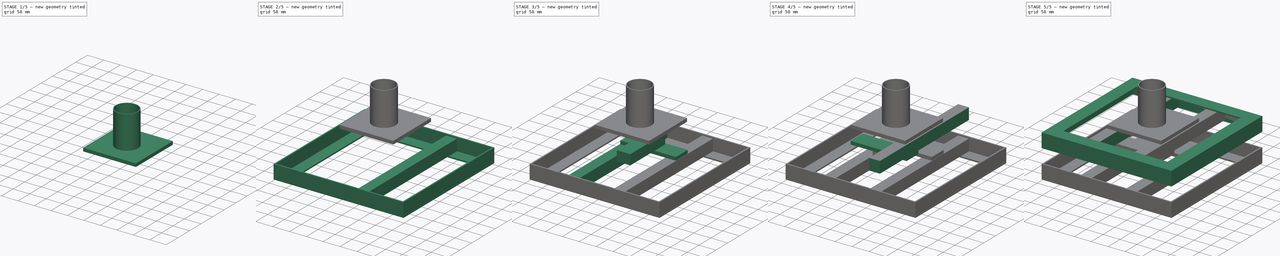
[diagram: build sequence overview — one tinted view per stage of 5, left to right]
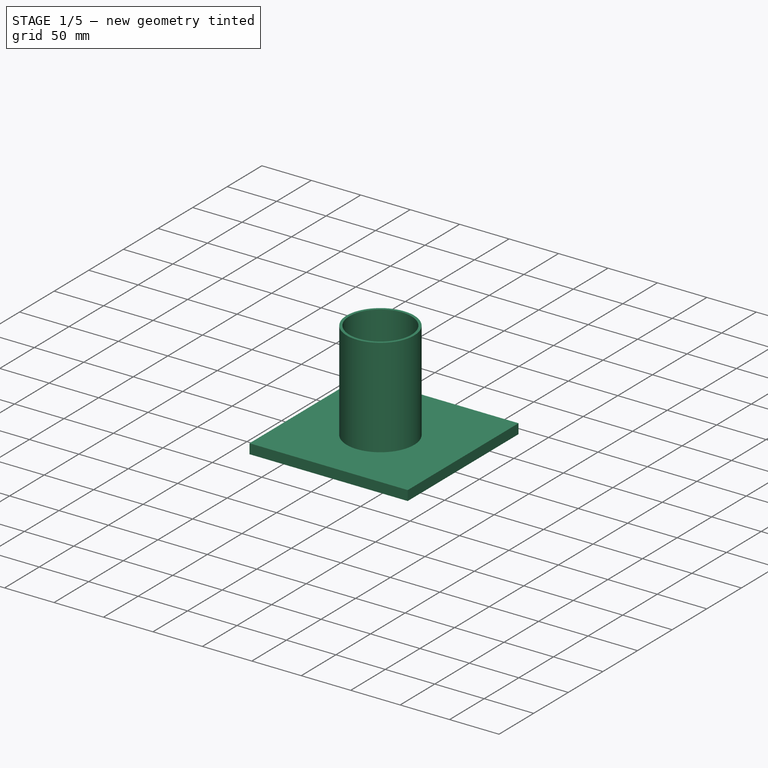
[diagram: stage 1 of 5 — iso view after this stage's code; geometry added in this stage tinted green]
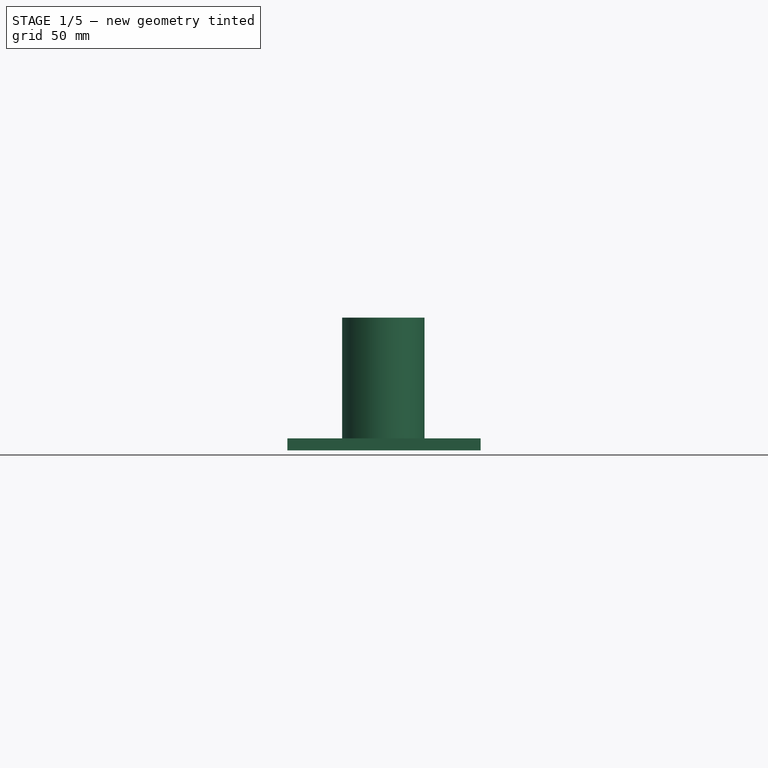
[diagram: stage 1 of 5 — front view after this stage's code; geometry added in this stage tinted green]
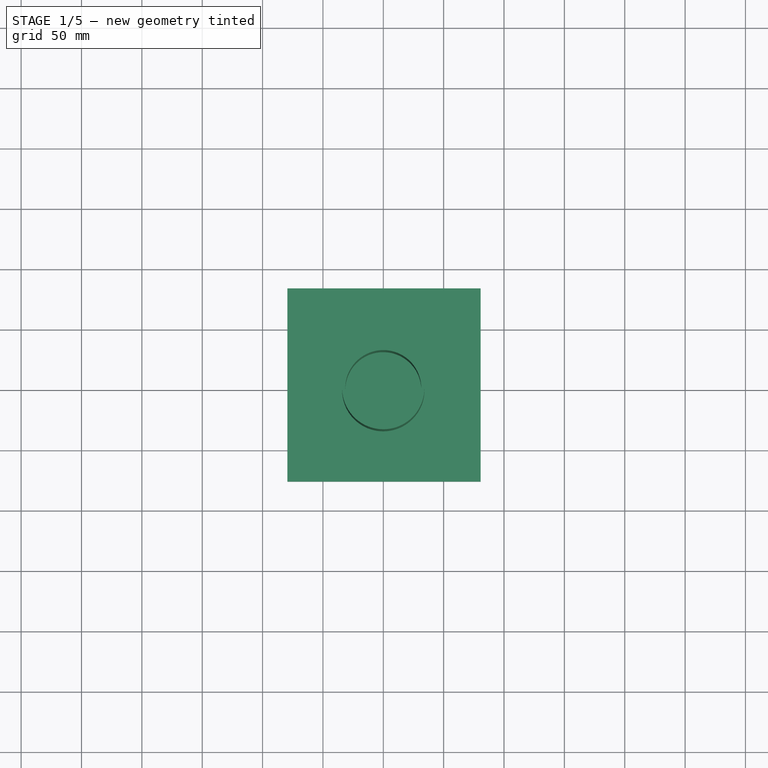
[diagram: stage 1 of 5 — top view after this stage's code; geometry added in this stage tinted green]
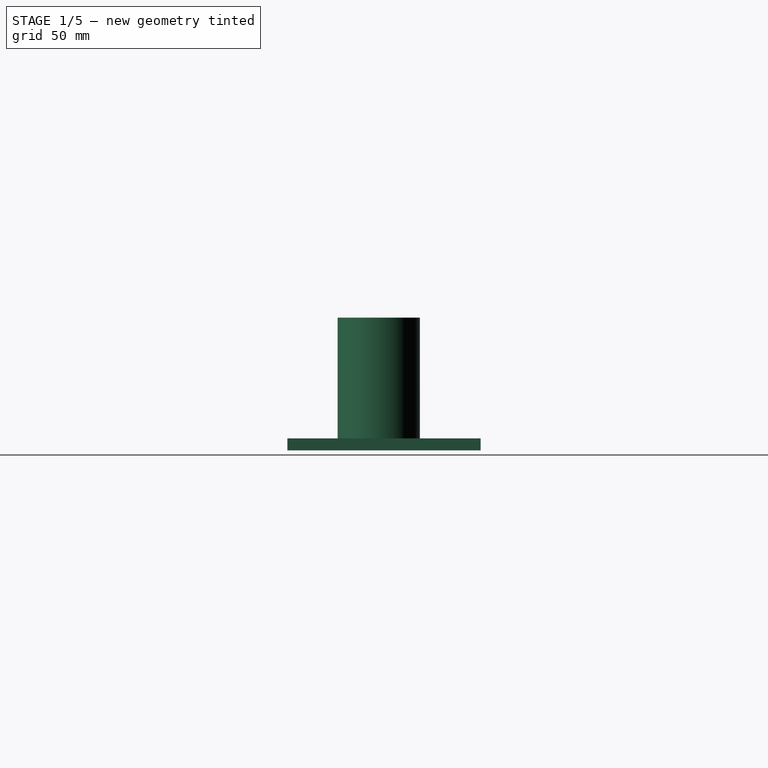
[diagram: stage 1 of 5 — right view after this stage's code; geometry added in this stage tinted green]
FCSTD DOCUMENT  (FreeCAD 0.18.4R)
Label: static fire rig
License: All rights reserved
LicenseURL: http://en.wikipedia.org/wiki/All_rights_reserved
objects: PartDesign::Body×13, Sketcher::SketchObject×12, PartDesign::Pad×11, PartDesign::ShapeBinder×10, PartDesign::Boolean×3, PartDesign::FeatureBase×2, PartDesign::Pocket×1
note: 64 computed .brp shape members not serialized (recipe doc carries the construction recipe); baked Part::Feature solids carry a one-line shape summary decoded from their .brp

FEATURE [PartDesign::Body] Body010  label="basePlate"
  Group = -> [CopyPad006,Sketch009,Pad008,Boolean001]
  Origin = -> Origin010
  Tip = -> Boolean001
FEATURE [PartDesign::ShapeBinder] CopyBoolean001
  TraceSupport = false
FEATURE [Sketcher::SketchObject] Sketch010
  MapMode = 5
  Support = -> [CopyBoolean001]
  sketch-geometry (4):
    g0: LineSegment StartX=-79.416 StartY=84.3288 StartZ=0 EndX=80.584 EndY=84.3288 EndZ=0
    g1: LineSegment StartX=80.584 StartY=84.3288 StartZ=0 EndX=80.584 EndY=-75.6712 EndZ=0
    g2: LineSegment StartX=80.584 StartY=-75.6712 StartZ=0 EndX=-79.416 EndY=-75.6712 EndZ=0
    g3: LineSegment StartX=-79.416 StartY=-75.6712 StartZ=0 EndX=-79.416 EndY=84.3288 EndZ=0
  constraints (10):
    c: Coincident(g0,g1)
    c: Coincident(g1,g2)
    c: Coincident(g2,g3)
    c: Coincident(g3,g0)
    c: Horizontal(g0)
    c: Horizontal(g2)
    c: Vertical(g1)
    c: Vertical(g3)
    c: DistanceX(g0,g0) = 160
    c: DistanceY(g1,g1) = 160
FEATURE [PartDesign::Pad] Pad009
  Length = 10
  Length2 = 100
  Profile = -> Sketch010
  Type = 0
FEATURE [PartDesign::Body] Body011
  Group = -> [CopyBoolean001,Sketch010,Pad009]
  Origin = -> Origin011
  Tip = -> Pad009
FEATURE [PartDesign::ShapeBinder] CopyPad009
  Placement = pos=(0,0,10) rot=(0,0,1;0rad)
  TraceSupport = false
FEATURE [Sketcher::SketchObject] Sketch011
  MapMode = 5
  Placement = pos=(0,0,10) rot=(0,0,1;0rad)
  Support = -> [CopyPad009]
  sketch-geometry (2):
    g0: Circle CenterX=0 CenterY=0 CenterZ=0 NormalX=0 NormalY=0 NormalZ=1 AngleXU=0 Radius=34.1
    g1: Circle CenterX=0 CenterY=0 CenterZ=0 NormalX=0 NormalY=0 NormalZ=1 AngleXU=0 Radius=31.4754
  constraints (1):
    c: Radius(g0) = 34.1
FEATURE [PartDesign::Pad] Pad010
  Length = 100
  Length2 = 100
  Placement = pos=(0,0,10) rot=(0,0,1;0rad)
  Profile = -> Sketch011
  Type = 0
FEATURE [PartDesign::Boolean] Boolean002
  BaseFeature = -> Pad010
  Group = -> [Body011]
  Type = 0
FEATURE [PartDesign::Body] Body012  label="motorAdapter"
  Group = -> [CopyPad009,Sketch011,Pad010,Boolean002]
  Origin = -> Origin012
  Tip = -> Boolean002
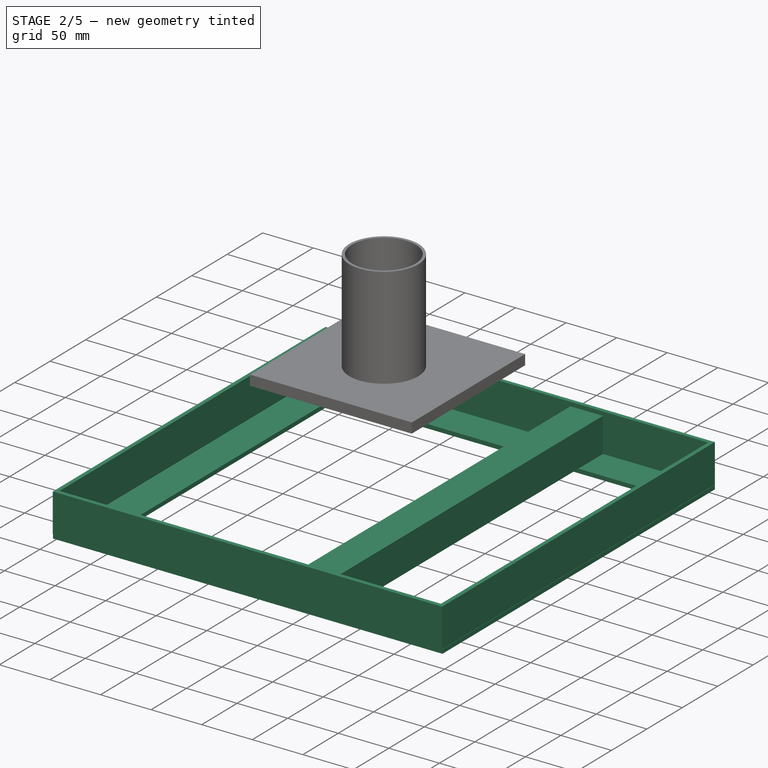
[diagram: stage 2 of 5 — iso view after this stage's code; geometry added in this stage tinted green]
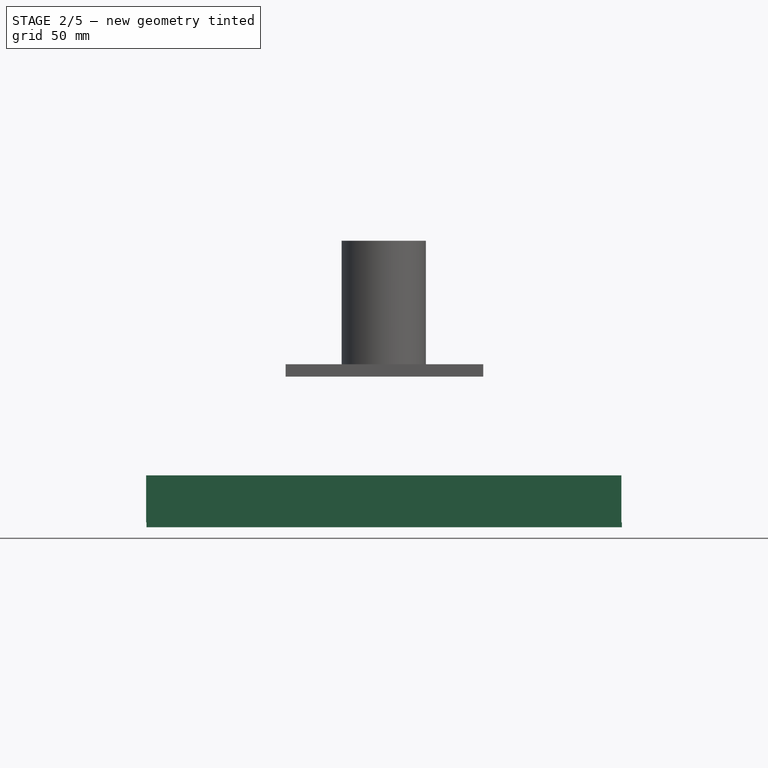
[diagram: stage 2 of 5 — front view after this stage's code; geometry added in this stage tinted green]
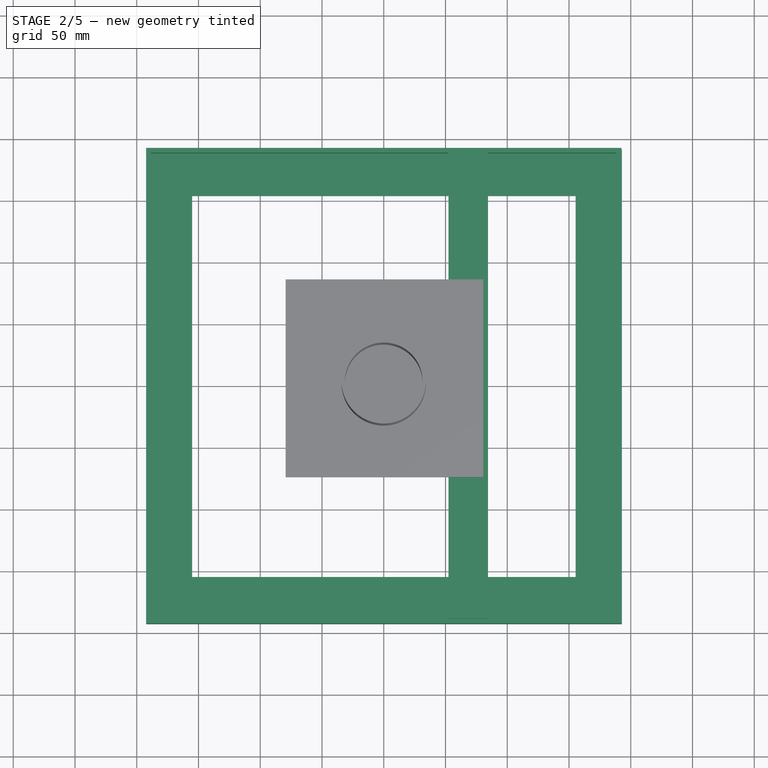
[diagram: stage 2 of 5 — top view after this stage's code; geometry added in this stage tinted green]
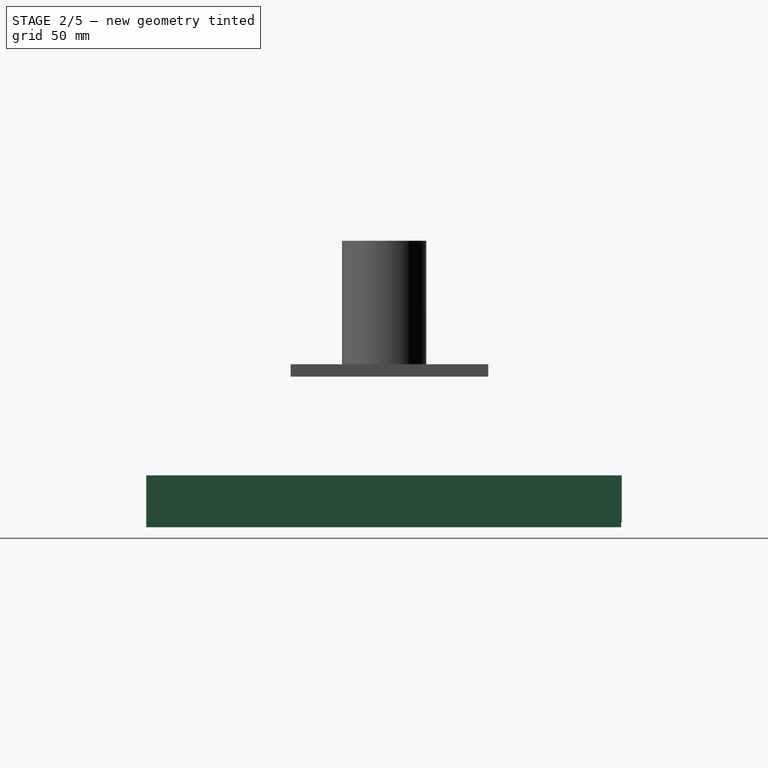
[diagram: stage 2 of 5 — right view after this stage's code; geometry added in this stage tinted green]
FEATURE [PartDesign::Body] Body006  label="lowerMiddlePlate"
  Group = -> [CopyPocket,Sketch006,Pad005]
  Origin = -> Origin006
  Tip = -> Pad005
FEATURE [PartDesign::ShapeBinder] CopyPad005
  Placement = pos=(0,0,-10) rot=(0,0,1;0rad)
  TraceSupport = false
FEATURE [Sketcher::SketchObject] Sketch007
  MapMode = 5
  Placement = pos=(0,0,-84) rot=(1,0,0;3.14159rad)
  Support = -> [CopyPad005]
  sketch-geometry (4):
    g0: LineSegment StartX=-82.5509 StartY=188.342 StartZ=0 EndX=-50.5509 EndY=188.342 EndZ=0
    g1: LineSegment StartX=-50.5509 StartY=188.342 StartZ=0 EndX=-50.5509 EndY=-188.658 EndZ=0
    g2: LineSegment StartX=-50.5509 StartY=-188.658 StartZ=0 EndX=-82.5509 EndY=-188.658 EndZ=0
    g3: LineSegment StartX=-82.5509 StartY=-188.658 StartZ=0 EndX=-82.5509 EndY=188.342 EndZ=0
  constraints (10):
    c: Coincident(g0,g1)
    c: Coincident(g1,g2)
    c: Coincident(g2,g3)
    c: Coincident(g3,g0)
    c: Horizontal(g0)
    c: Horizontal(g2)
    c: Vertical(g1)
    c: Vertical(g3)
    c: DistanceX(g0,g0) = 32
    c: DistanceY(g1,g1) = 377
FEATURE [PartDesign::Pad] Pad006
  Length = 34
  Length2 = 100
  Placement = pos=(0,0,-10) rot=(0,0,1;0rad)
  Profile = -> Sketch007
  Type = 0
FEATURE [PartDesign::Body] Body007  label="body07"
  Group = -> [CopyPad005,Sketch007,Pad006]
  Origin = -> Origin007
  Tip = -> Pad006
FEATURE [PartDesign::FeatureBase] Clone001
  BaseFeature = -> Body007
  Placement = pos=(135,0,0) rot=(0,0,1;0rad)
FEATURE [PartDesign::Body] Body008
  Group = -> [Clone001]
  Origin = -> Origin008
  Tip = -> Clone001
FEATURE [PartDesign::ShapeBinder] CopyClone001
  Placement = pos=(135,0,-24) rot=(0,0,1;0rad)
  TraceSupport = false
FEATURE [Sketcher::SketchObject] Sketch008
  MapMode = 5
  Placement = pos=(135,0,-118) rot=(1,0,0;3.14159rad)
  Support = -> [CopyClone001]
  sketch-geometry (8):
    g0: LineSegment StartX=-327.367 StartY=192.62 StartZ=0 EndX=57.429 EndY=192.62 EndZ=0
    g1: LineSegment StartX=57.429 StartY=192.62 StartZ=0 EndX=57.429 EndY=-192.411 EndZ=0
    g2: LineSegment StartX=57.429 StartY=-192.411 StartZ=0 EndX=-327.367 EndY=-192.411 EndZ=0
    g3: LineSegment StartX=-327.367 StartY=-192.411 StartZ=0 EndX=-327.367 EndY=192.62 EndZ=0
    g4: LineSegment StartX=-323.474 StartY=188.557 StartZ=0 EndX=53.4439 EndY=188.557 EndZ=0
    g5: LineSegment StartX=53.4439 StartY=188.557 StartZ=0 EndX=53.4439 EndY=-188.58 EndZ=0
    g6: LineSegment StartX=53.4439 StartY=-188.58 StartZ=0 EndX=-323.474 EndY=-188.58 EndZ=0
    g7: LineSegment StartX=-323.474 StartY=-188.58 StartZ=0 EndX=-323.474 EndY=188.557 EndZ=0
  constraints (16):
    c: Coincident(g0,g1)
    c: Coincident(g1,g2)
    c: Coincident(g2,g3)
    c: Coincident(g3,g0)
    c: Horizontal(g0)
    c: Horizontal(g2)
    c: Vertical(g1)
    c: Vertical(g3)
    c: Coincident(g4,g5)
    c: Coincident(g5,g6)
    c: Coincident(g6,g7)
    c: Coincident(g7,g4)
    c: Horizontal(g4)
    c: Horizontal(g6)
    c: Vertical(g5)
    c: Vertical(g7)
FEATURE [PartDesign::Pad] Pad007
  Length = 38
  Length2 = 100
  Placement = pos=(135,0,-24) rot=(0,0,1;0rad)
  Profile = -> Sketch008
  Reversed = true
  Type = 0
FEATURE [PartDesign::Body] Body009
  Group = -> [CopyClone001,Sketch008,Pad007]
  Origin = -> Origin009
  Tip = -> Pad007
FEATURE [PartDesign::ShapeBinder] CopyPad006
  Placement = pos=(0,0,-34) rot=(0,0,1;0rad)
  TraceSupport = false
FEATURE [Sketcher::SketchObject] Sketch009
  MapMode = 5
  Placement = pos=(0,0,-118) rot=(1,0,0;3.14159rad)
  Support = -> [CopyPad006]
  sketch-geometry (8):
    g0: LineSegment StartX=-192.14 StartY=192.601 StartZ=0 EndX=192.772 EndY=192.601 EndZ=0
    g1: LineSegment StartX=192.772 StartY=192.601 StartZ=0 EndX=192.772 EndY=-191.909 EndZ=0
    g2: LineSegment StartX=192.772 StartY=-191.909 StartZ=0 EndX=-192.14 EndY=-191.909 EndZ=0
    g3: LineSegment StartX=-192.14 StartY=-191.909 StartZ=0 EndX=-192.14 EndY=192.601 EndZ=0
    g4: LineSegment StartX=-155.178 StartY=154.388 StartZ=0 EndX=155.306 EndY=154.388 EndZ=0
    g5: LineSegment StartX=155.306 StartY=154.388 StartZ=0 EndX=155.306 EndY=-154.067 EndZ=0
    g6: LineSegment StartX=155.306 StartY=-154.067 StartZ=0 EndX=-155.178 EndY=-154.067 EndZ=0
    g7: LineSegment StartX=-155.178 StartY=-154.067 StartZ=0 EndX=-155.178 EndY=154.388 EndZ=0
  constraints (16):
    c: Coincident(g0,g1)
    c: Coincident(g1,g2)
    c: Coincident(g2,g3)
    c: Coincident(g3,g0)
    c: Horizontal(g0)
    c: Horizontal(g2)
    c: Vertical(g1)
    c: Vertical(g3)
    c: Coincident(g4,g5)
    c: Coincident(g5,g6)
    c: Coincident(g6,g7)
    c: Coincident(g7,g4)
    c: Horizontal(g4)
    c: Horizontal(g6)
    c: Vertical(g5)
    c: Vertical(g7)
FEATURE [PartDesign::Pad] Pad008
  Length = 4
  Length2 = 100
  Placement = pos=(0,0,-34) rot=(0,0,1;0rad)
  Profile = -> Sketch009
  Type = 0
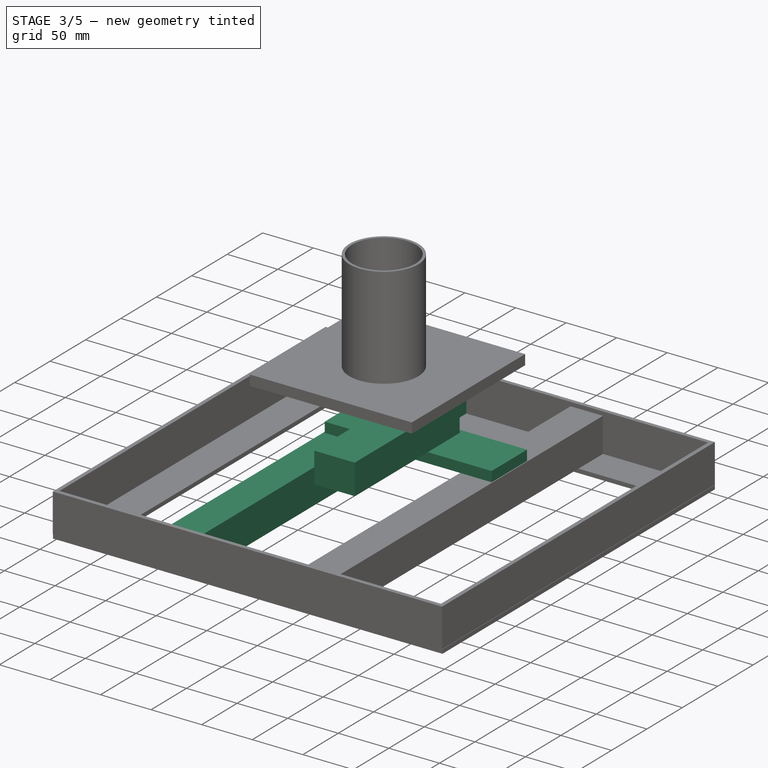
[diagram: stage 3 of 5 — iso view after this stage's code; geometry added in this stage tinted green]
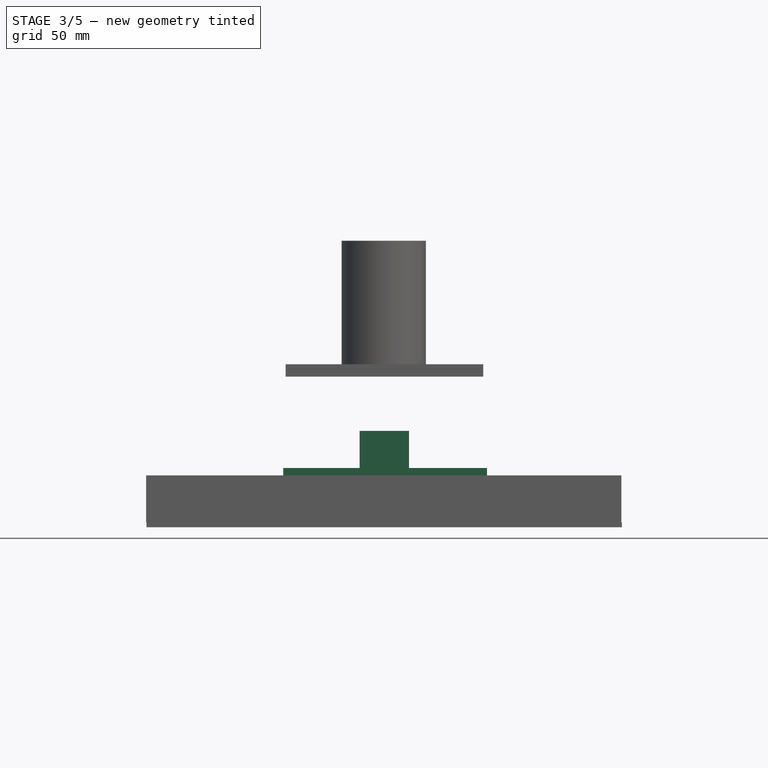
[diagram: stage 3 of 5 — front view after this stage's code; geometry added in this stage tinted green]
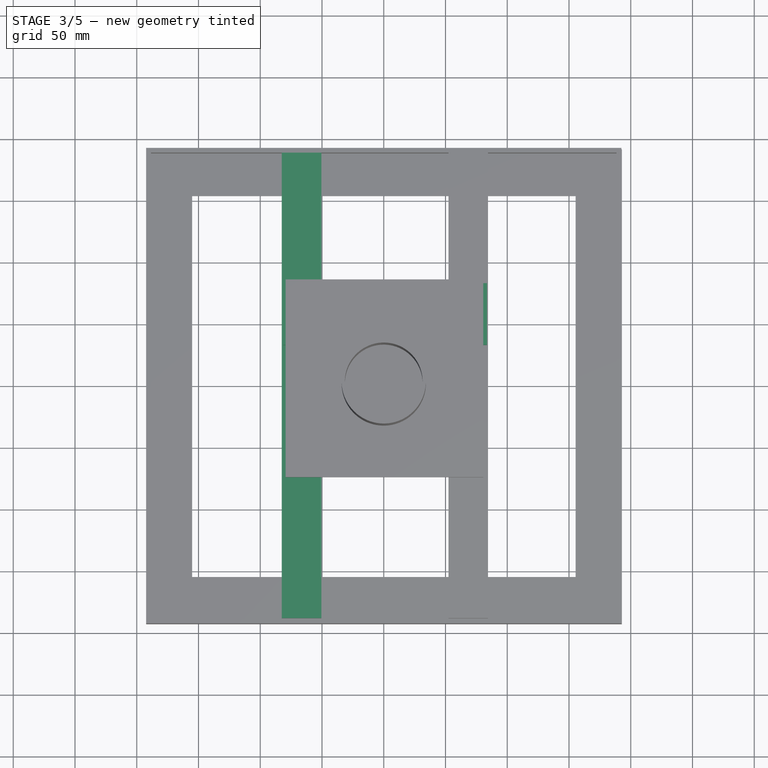
[diagram: stage 3 of 5 — top view after this stage's code; geometry added in this stage tinted green]
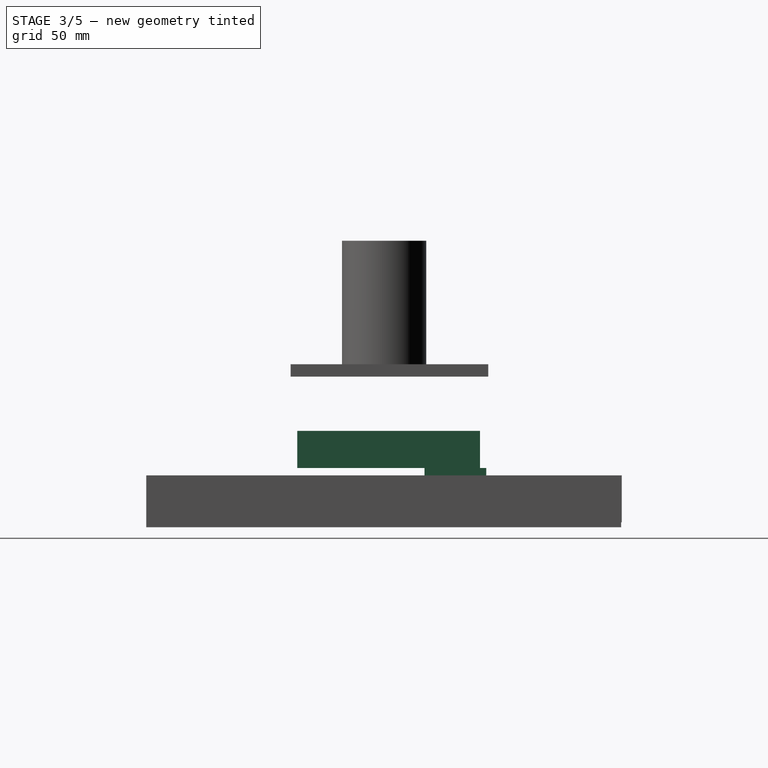
[diagram: stage 3 of 5 — right view after this stage's code; geometry added in this stage tinted green]
FEATURE [PartDesign::Body] Body004  label="upperMiddlePlate"
  Group = -> [CopyBoolean,Sketch003,Pad003]
  Origin = -> Origin004
  Tip = -> Pad003
FEATURE [PartDesign::ShapeBinder] CopyPad003
  Placement = pos=(0,0,-10) rot=(0,0,1;0rad)
  TraceSupport = false
FEATURE [Sketcher::SketchObject] Sketch004
  MapMode = 5
  Placement = pos=(0,0,-44) rot=(1,0,0;3.14159rad)
  Support = -> [CopyPad003]
  sketch-geometry (10):
    g0: LineSegment [constr] StartX=-51.0368 StartY=73.7799 StartZ=0 EndX=52.0032 EndY=73.7799 EndZ=0
    g1: LineSegment [constr] StartX=52.0032 StartY=73.7799 StartZ=0 EndX=52.0032 EndY=23.9527 EndZ=0
    g2: LineSegment [constr] StartX=52.0032 StartY=23.9527 StartZ=0 EndX=-51.0368 EndY=23.9527 EndZ=0
    g3: LineSegment [constr] StartX=-51.0368 StartY=23.9527 StartZ=0 EndX=-51.0368 EndY=73.7799 EndZ=0
    g4: LineSegment [constr] StartX=20.4832 StartY=70.3265 StartZ=0 EndX=52.0032 EndY=70.3191 EndZ=0
    g5: LineSegment [constr] StartX=-19.5168 StartY=70.3265 StartZ=0 EndX=-51.0368 EndY=70.3191 EndZ=0
    g6: LineSegment StartX=20.4832 StartY=70.3265 StartZ=0 EndX=-19.5168 EndY=70.3265 EndZ=0
    g7: LineSegment StartX=-19.5168 StartY=70.3265 StartZ=0 EndX=-19.5168 EndY=-77.6735 EndZ=0
    g8: LineSegment StartX=-19.5168 StartY=-77.6735 StartZ=0 EndX=20.4832 EndY=-77.6735 EndZ=0
    g9: LineSegment StartX=20.4832 StartY=-77.6735 StartZ=0 EndX=20.4832 EndY=70.3265 EndZ=0
  constraints (24):
    c: Coincident(g0,g1)
    c: Coincident(g1,g2)
    c: Coincident(g2,g3)
    c: Coincident(g3,g0)
    c: Horizontal(g0)
    c: Horizontal(g2)
    c: Vertical(g1)
    c: Vertical(g3)
    c: DistanceX(g5,g4) = 40
    c: PointOnObject(g4,g1)
    c: PointOnObject(g5,g3)
    c: DistanceX(g4,g4) = 31.52
    c: Coincident(g6,g7)
    c: Coincident(g7,g8)
    c: Coincident(g8,g9)
    c: Coincident(g9,g6)
    c: Horizontal(g6)
    c: Horizontal(g8)
    c: Vertical(g7)
    c: Vertical(g9)
    c: Coincident(g4,g6)
    c: Coincident(g5,g6)
    c: DistanceX(g5,g5) = 31.52
    c: DistanceY(g9,g9) = 148
FEATURE [PartDesign::Pad] Pad004
  Length = 30
  Length2 = 100
  Placement = pos=(0,0,-10) rot=(0,0,1;0rad)
  Profile = -> Sketch004
  Type = 0
FEATURE [PartDesign::Body] Body005  label="loadCell"
  Group = -> [CopyPad003,Sketch004,Pad004,Sketch005,Pocket]
  Origin = -> Origin005
  Tip = -> Pocket
FEATURE [PartDesign::ShapeBinder] CopyPocket
  Placement = pos=(0,0,-30) rot=(0,0,1;0rad)
  TraceSupport = false
FEATURE [Sketcher::SketchObject] Sketch006
  MapMode = 5
  Placement = pos=(0,0,-74) rot=(1,0,0;3.14159rad)
  Support = -> [CopyPocket]
  sketch-geometry (4):
    g0: LineSegment StartX=-81.4031 StartY=-32.7248 StartZ=0 EndX=83.5969 EndY=-32.7248 EndZ=0
    g1: LineSegment StartX=83.5969 StartY=-32.7248 StartZ=0 EndX=83.5969 EndY=-82.7248 EndZ=0
    g2: LineSegment StartX=83.5969 StartY=-82.7248 StartZ=0 EndX=-81.4031 EndY=-82.7248 EndZ=0
    g3: LineSegment StartX=-81.4031 StartY=-82.7248 StartZ=0 EndX=-81.4031 EndY=-32.7248 EndZ=0
  constraints (10):
    c: Coincident(g0,g1)
    c: Coincident(g1,g2)
    c: Coincident(g2,g3)
    c: Coincident(g3,g0)
    c: Horizontal(g0)
    c: Horizontal(g2)
    c: Vertical(g1)
    c: Vertical(g3)
    c: DistanceY(g1,g1) = 50
    c: DistanceX(g2,g2) = 165
FEATURE [PartDesign::Pad] Pad005
  Length = 10
  Length2 = 100
  Placement = pos=(0,0,-30) rot=(0,0,1;0rad)
  Profile = -> Sketch006
  Type = 0
FEATURE [PartDesign::Boolean] Boolean001
  BaseFeature = -> Pad008
  Group = -> [Body009,Body008,Body007]
  Type = 0
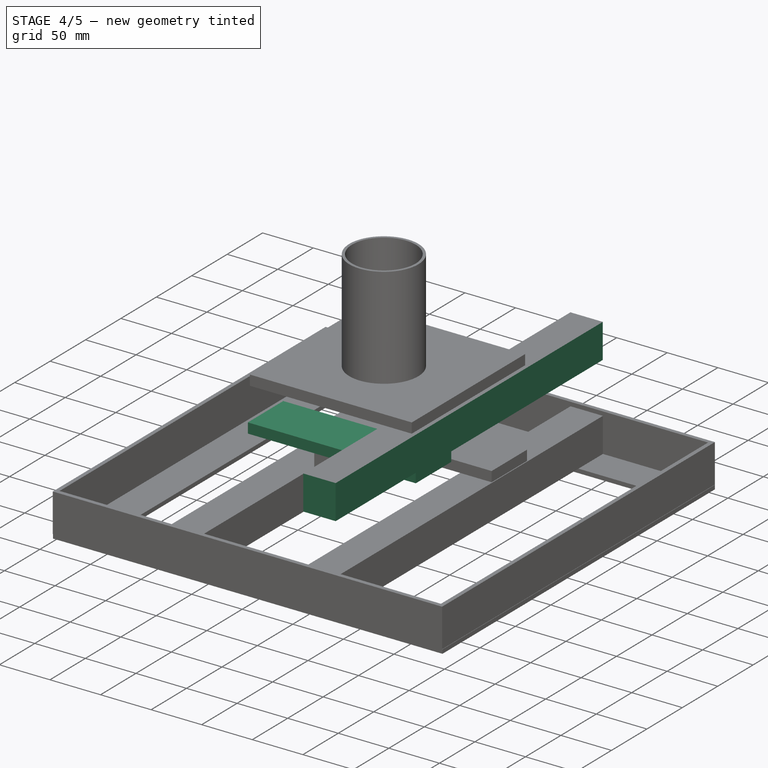
[diagram: stage 4 of 5 — iso view after this stage's code; geometry added in this stage tinted green]
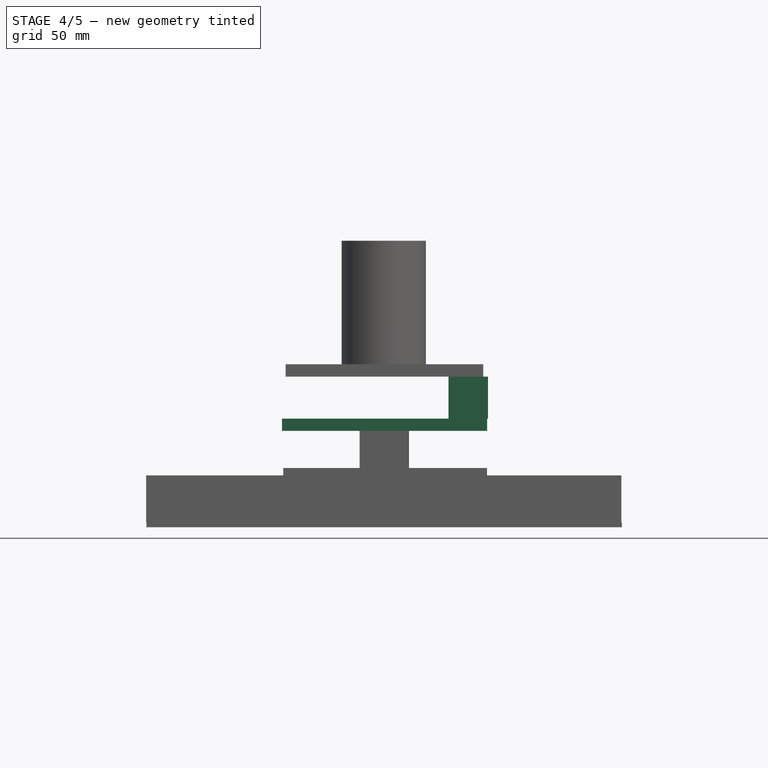
[diagram: stage 4 of 5 — front view after this stage's code; geometry added in this stage tinted green]
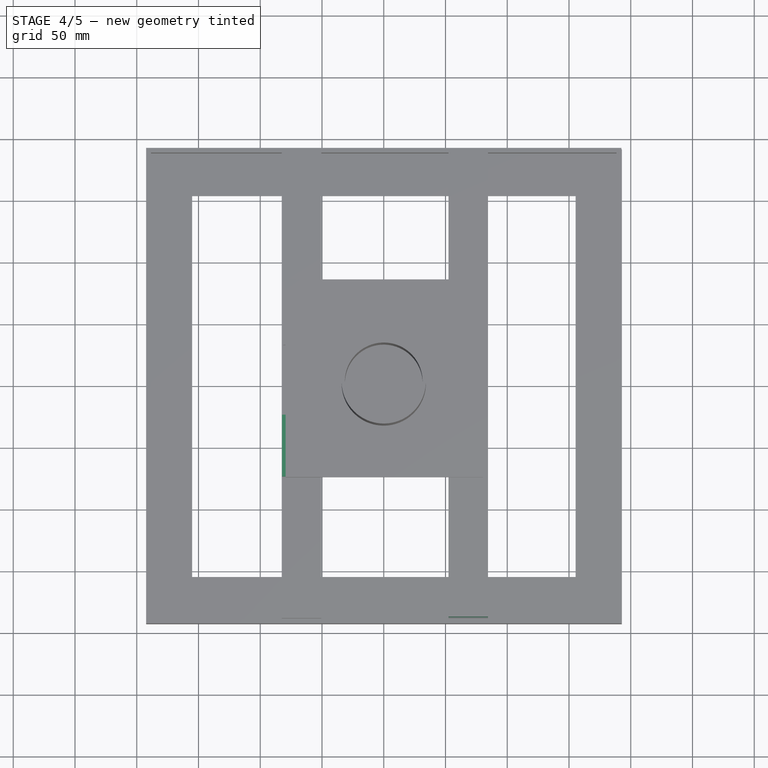
[diagram: stage 4 of 5 — top view after this stage's code; geometry added in this stage tinted green]
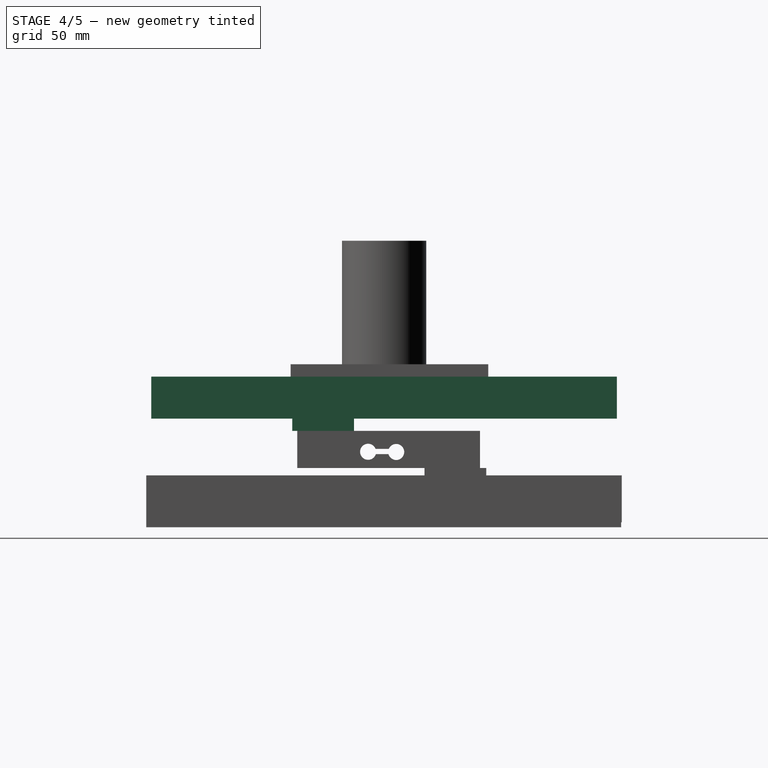
[diagram: stage 4 of 5 — right view after this stage's code; geometry added in this stage tinted green]
FEATURE [PartDesign::Body] Body001
  Group = -> [CopyPad,Sketch001,Pad001]
  Origin = -> Origin001
  Tip = -> Pad001
FEATURE [PartDesign::ShapeBinder] CopyPad001
  TraceSupport = false
FEATURE [Sketcher::SketchObject] Sketch002
  MapMode = 5
  Placement = pos=(0,0,0) rot=(1,0,0;3.14159rad)
  Support = -> [CopyPad001]
  sketch-geometry (4):
    g0: LineSegment StartX=-82.5686 StartY=188.601 StartZ=0 EndX=-50.5686 EndY=188.601 EndZ=0
    g1: LineSegment StartX=-50.5686 StartY=188.601 StartZ=0 EndX=-50.5686 EndY=-188.47 EndZ=0
    g2: LineSegment StartX=-50.5686 StartY=-188.47 StartZ=0 EndX=-82.5686 EndY=-188.47 EndZ=0
    g3: LineSegment StartX=-82.5686 StartY=-188.47 StartZ=0 EndX=-82.5686 EndY=188.601 EndZ=0
  constraints (8):
    c: Coincident(g0,g1)
    c: Coincident(g1,g2)
    c: Coincident(g2,g3)
    c: Coincident(g3,g0)
    c: Horizontal(g0)
    c: Horizontal(g2)
    c: Vertical(g1)
    c: Vertical(g3)
FEATURE [PartDesign::Pad] Pad002
  Length = 34
  Length2 = 100
  Profile = -> Sketch002
  Type = 0
FEATURE [PartDesign::FeatureBase] Clone
  BaseFeature = -> Pad002
  Placement = pos=(135,0,0) rot=(0,0,1;0rad)
FEATURE [PartDesign::Body] Body002  label="mountPlate"
  Group = -> [CopyPad001,Sketch002,Pad002,Boolean]
  Origin = -> Origin002
  Tip = -> Boolean
FEATURE [PartDesign::ShapeBinder] CopyBoolean
  TraceSupport = false
FEATURE [Sketcher::SketchObject] Sketch003
  MapMode = 5
  Placement = pos=(0,0,-34) rot=(1,0,0;3.14159rad)
  Support = -> [CopyBoolean]
  sketch-geometry (5):
    g0: LineSegment StartX=83.6574 StartY=74.4092 StartZ=0 EndX=-82.3426 EndY=74.4092 EndZ=0
    g1: LineSegment StartX=-82.3426 StartY=74.4092 StartZ=0 EndX=-82.3426 EndY=24.4092 EndZ=0
    g2: LineSegment StartX=-82.3426 StartY=24.4092 StartZ=0 EndX=83.6574 EndY=24.4092 EndZ=0
    g3: LineSegment StartX=83.6574 StartY=24.4092 StartZ=0 EndX=83.6574 EndY=74.4092 EndZ=0
    g4: LineSegment StartX=83.6574 StartY=74.4092 StartZ=0 EndX=-82.472 EndY=74.4092 EndZ=0
  constraints (12):
    c: Coincident(g0,g1)
    c: Coincident(g1,g2)
    c: Coincident(g2,g3)
    c: Coincident(g3,g0)
    c: Horizontal(g0)
    c: Horizontal(g2)
    c: Vertical(g1)
    c: Vertical(g3)
    c: DistanceY(g3,g3) = 50
    c: DistanceX(g2,g2) = 166
    c: Horizontal(g4)
    c: Coincident(g0,g4)
FEATURE [PartDesign::Pad] Pad003
  Length = 10
  Length2 = 100
  Profile = -> Sketch003
  Type = 0
FEATURE [Sketcher::SketchObject] Sketch005
  MapMode = 5
  Placement = pos=(-19.5168,0,-10) rot=(0.57735,-0.57735,-0.57735;2.0944rad)
  Support = -> [Pad004]
  sketch-geometry (4):
    g0: ArcOfCircle CenterX=-9.77755 CenterY=-51.0385 CenterZ=0 NormalX=0 NormalY=0 NormalZ=1 AngleXU=0 Radius=6.5 StartAngle=0.401988 EndAngle=6.01084
    g1: ArcOfCircle CenterX=12.9546 CenterY=-50.8852 CenterZ=0 NormalX=0 NormalY=0 NormalZ=1 AngleXU=0 Radius=6.5 StartAngle=3.43851 EndAngle=9.04828
    g2: LineSegment StartX=-3.51713 StartY=-52.7869 StartZ=0 EndX=6.73898 EndY=-52.7869 EndZ=0
    g3: LineSegment StartX=6.90984 StartY=-48.4954 StartZ=0 EndX=-3.79569 EndY=-48.4954 EndZ=0
  constraints (8):
    c: Equal(g1,g0)
    c: Diameter(g0) = 13
    c: Horizontal(g2)
    c: Horizontal(g3)
    c: Coincident(g0,g3)
    c: Coincident(g0,g2)
    c: Coincident(g1,g2)
    c: Coincident(g1,g3)
FEATURE [PartDesign::Pocket] Pocket
  BaseFeature = -> Pad004
  Length = 40
  Length2 = 100
  Placement = pos=(0,0,-10) rot=(0,0,1;0rad)
  Profile = -> Sketch005
  Type = 0
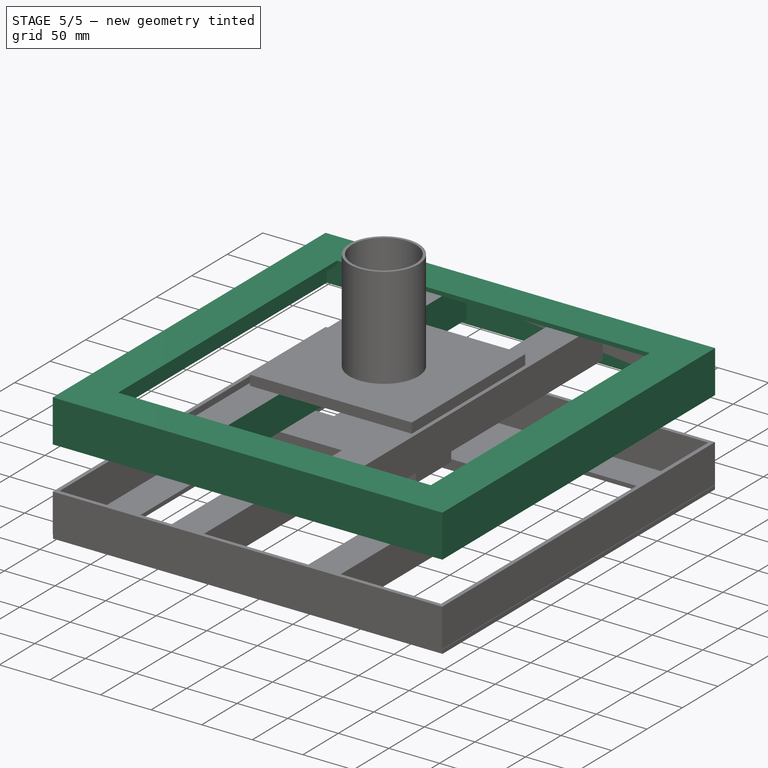
[diagram: stage 5 of 5 — iso view after this stage's code; geometry added in this stage tinted green]
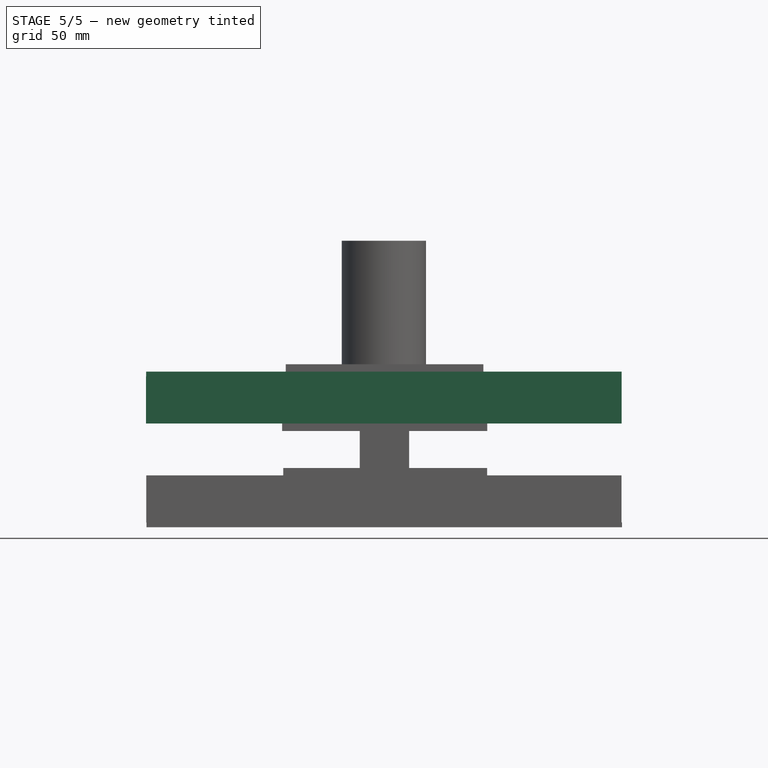
[diagram: stage 5 of 5 — front view after this stage's code; geometry added in this stage tinted green]
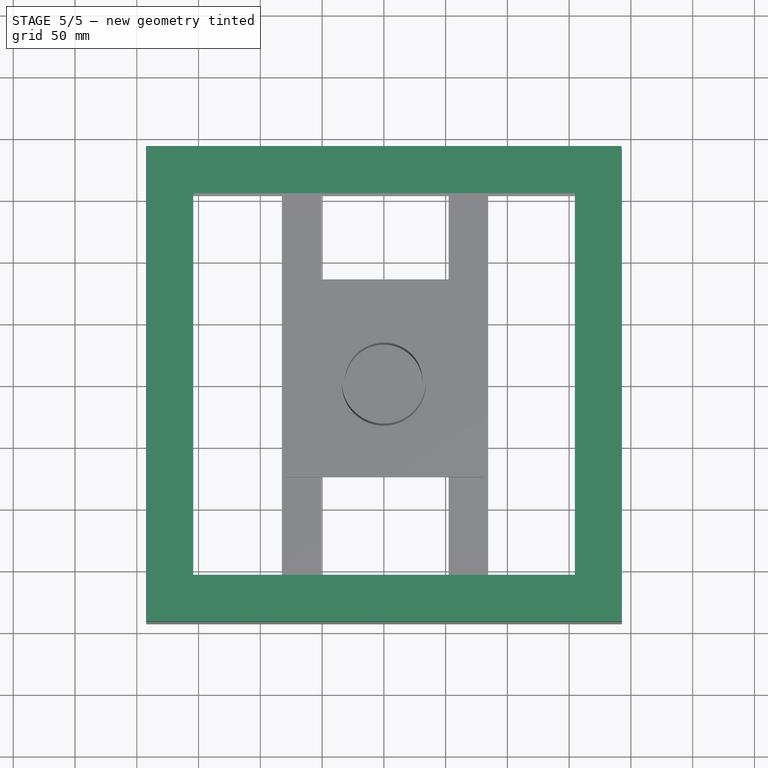
[diagram: stage 5 of 5 — top view after this stage's code; geometry added in this stage tinted green]
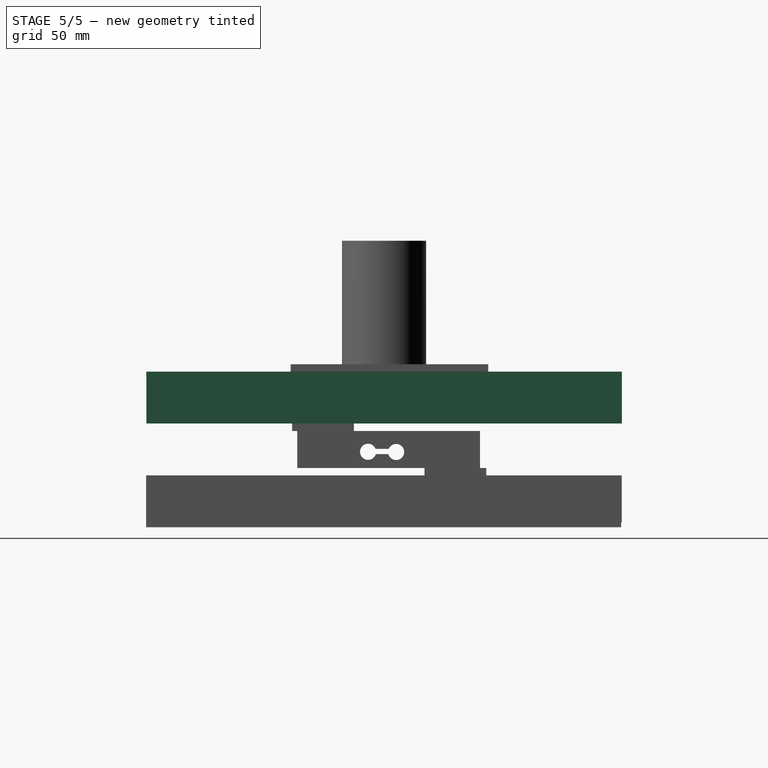
[diagram: stage 5 of 5 — right view after this stage's code; geometry added in this stage tinted green]
FEATURE [Sketcher::SketchObject] Sketch
  MapMode = 2
  Support = -> [Sketch]
  sketch-geometry (16):
    g0: LineSegment StartX=-192.5 StartY=192.5 StartZ=0 EndX=192.5 EndY=192.5 EndZ=0
    g1: LineSegment StartX=192.5 StartY=192.5 StartZ=0 EndX=192.5 EndY=-192.5 EndZ=0
    g2: LineSegment StartX=192.5 StartY=-192.5 StartZ=0 EndX=-192.5 EndY=-192.5 EndZ=0
    g3: LineSegment StartX=-192.5 StartY=-192.5 StartZ=0 EndX=-192.5 EndY=192.5 EndZ=0
    g4: LineSegment [constr] StartX=-192.5 StartY=192.5 StartZ=0 EndX=0 EndY=0 EndZ=0
    g5: LineSegment [constr] StartX=0 StartY=0 StartZ=0 EndX=192.5 EndY=-192.5 EndZ=0
    g6: LineSegment StartX=-154.334 StartY=154.334 StartZ=0 EndX=154.666 EndY=154.334 EndZ=0
    g7: LineSegment StartX=154.666 StartY=154.334 StartZ=0 EndX=154.666 EndY=-154.666 EndZ=0
    g8: LineSegment StartX=154.666 StartY=-154.666 StartZ=0 EndX=-154.334 EndY=-154.666 EndZ=0
    g9: LineSegment StartX=-154.334 StartY=-154.666 StartZ=0 EndX=-154.334 EndY=154.334 EndZ=0
    g10: LineSegment [constr] StartX=-191.825 StartY=192.508 StartZ=0 EndX=-154.334 EndY=154.334 EndZ=0
    g11: LineSegment [constr] StartX=192.5 StartY=-192.5 StartZ=0 EndX=154.666 EndY=-154.666 EndZ=0
    g12: LineSegment [constr] StartX=-154.334 StartY=-154.666 StartZ=0 EndX=-192.168 EndY=-192.832 EndZ=0
    g13: LineSegment [constr] StartX=154.666 StartY=154.334 StartZ=0 EndX=192.5 EndY=192.5 EndZ=0
    g14: LineSegment [constr] StartX=188.518 StartY=188.482 StartZ=0 EndX=192.5 EndY=192.465 EndZ=0
    g15: LineSegment [constr] StartX=188.517 StartY=-188.517 StartZ=0 EndX=192.5 EndY=-192.5 EndZ=0
  constraints (37):
    c: Coincident(g0,g1)
    c: Coincident(g1,g2)
    c: Coincident(g2,g3)
    c: Coincident(g3,g0)
    c: Horizontal(g0)
    c: Horizontal(g2)
    c: Vertical(g1)
    c: Vertical(g3)
    c: DistanceX(g0,g0) = 385
    c: DistanceY(g1,g1) = 385
    c: Coincident(g4,g0)
    c: Coincident(g5,g1)
    c: Parallel(g5,g4)
    c: Coincident(g5,g-1)
    c: Coincident(g4,g5)
    c: Equal(g5,g4)
    c: Coincident(g6,g7)
    c: Coincident(g7,g8)
    c: Coincident(g8,g9)
    c: Coincident(g9,g6)
    c: Horizontal(g6)
    c: Horizontal(g8)
    c: Vertical(g7)
    c: Vertical(g9)
    c: DistanceX(g6,g6) = 309
    c: DistanceY(g9,g9) = 309
    c: PointOnObject(g6,g4)
    c: Equal(g11,g10)
    c: Equal(g13,g12)
    c: Parallel(g13,g12)
    c: Coincident(g13,g6)
    c: Coincident(g7,g11)
    c: Coincident(g8,g12)
    c: Coincident(g10,g6)
    c: Coincident(g13,g0)
    c: Coincident(g11,g1)
    c: Equal(g15,g14)
FEATURE [PartDesign::Pad] Pad
  Length = 4
  Length2 = 100
  Profile = -> Sketch
  Type = 0
FEATURE [PartDesign::Body] Body
  Group = -> [Sketch,Pad]
  Origin = -> Origin
  Tip = -> Pad
FEATURE [PartDesign::ShapeBinder] CopyPad
  TraceSupport = false
FEATURE [Sketcher::SketchObject] Sketch001
  MapMode = 5
  Placement = pos=(0,0,0) rot=(1,0,0;3.14159rad)
  Support = -> [CopyPad]
  sketch-geometry (10):
    g0: LineSegment StartX=-188.524 StartY=188.456 StartZ=0 EndX=188.476 EndY=188.456 EndZ=0
    g1: LineSegment StartX=188.476 StartY=188.456 StartZ=0 EndX=188.476 EndY=-188.544 EndZ=0
    g2: LineSegment StartX=188.476 StartY=-188.544 StartZ=0 EndX=-188.524 EndY=-188.544 EndZ=0
    g3: LineSegment StartX=-188.524 StartY=-188.544 StartZ=0 EndX=-188.524 EndY=188.456 EndZ=0
    g4: LineSegment [constr] StartX=188.476 StartY=-188.544 StartZ=0 EndX=192.49 EndY=-192.475 EndZ=0
    g5: LineSegment [constr] StartX=-188.524 StartY=188.456 StartZ=0 EndX=-192.538 EndY=192.387 EndZ=0
    g6: LineSegment StartX=-192.538 StartY=192.387 StartZ=0 EndX=192.49 EndY=192.387 EndZ=0
    g7: LineSegment StartX=192.49 StartY=192.387 StartZ=0 EndX=192.49 EndY=-192.475 EndZ=0
    g8: LineSegment StartX=192.49 StartY=-192.475 StartZ=0 EndX=-192.538 EndY=-192.475 EndZ=0
    g9: LineSegment StartX=-192.538 StartY=-192.475 StartZ=0 EndX=-192.538 EndY=192.387 EndZ=0
  constraints (22):
    c: Coincident(g0,g1)
    c: Coincident(g1,g2)
    c: Coincident(g2,g3)
    c: Coincident(g3,g0)
    c: Horizontal(g0)
    c: Horizontal(g2)
    c: Vertical(g1)
    c: Vertical(g3)
    c: DistanceY(g3,g3) = 377
    c: DistanceX(g2,g2) = 377
    c: Coincident(g5,g0)
    c: Coincident(g4,g1)
    c: Equal(g4,g5)
    c: Parallel(g5,g4)
    c: Coincident(g6,g7)
    c: Coincident(g7,g8)
    c: Coincident(g8,g9)
    c: Coincident(g9,g6)
    c: Horizontal(g6)
    c: Horizontal(g8)
    c: Vertical(g7)
    c: Vertical(g9)
FEATURE [PartDesign::Pad] Pad001
  Length = 38
  Length2 = 100
  Profile = -> Sketch001
  Type = 0
FEATURE [PartDesign::Body] Body003
  Group = -> [Clone]
  Origin = -> Origin003
  Tip = -> Clone
FEATURE [PartDesign::Boolean] Boolean
  BaseFeature = -> Pad002
  Group = -> [Body,Body001,Body003]
  Type = 0
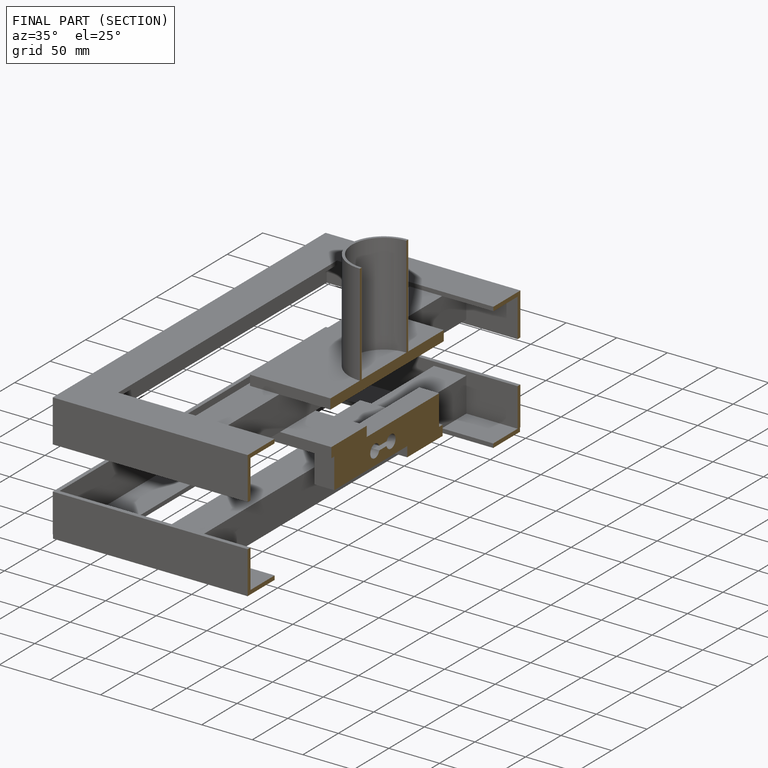
[diagram: finished part — half-section view (interior)]
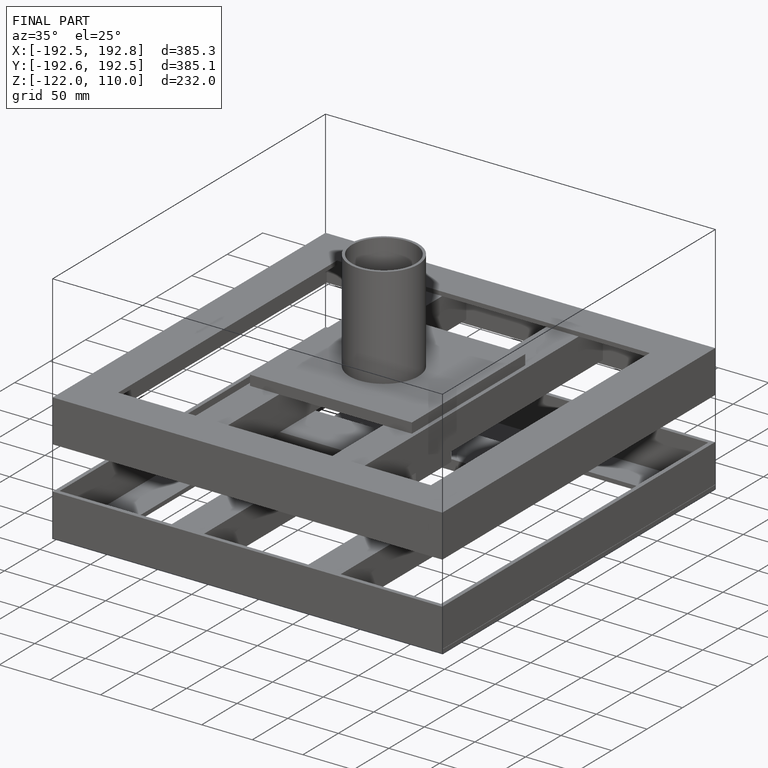
[diagram: finished part — iso view with bounding-box wireframe]
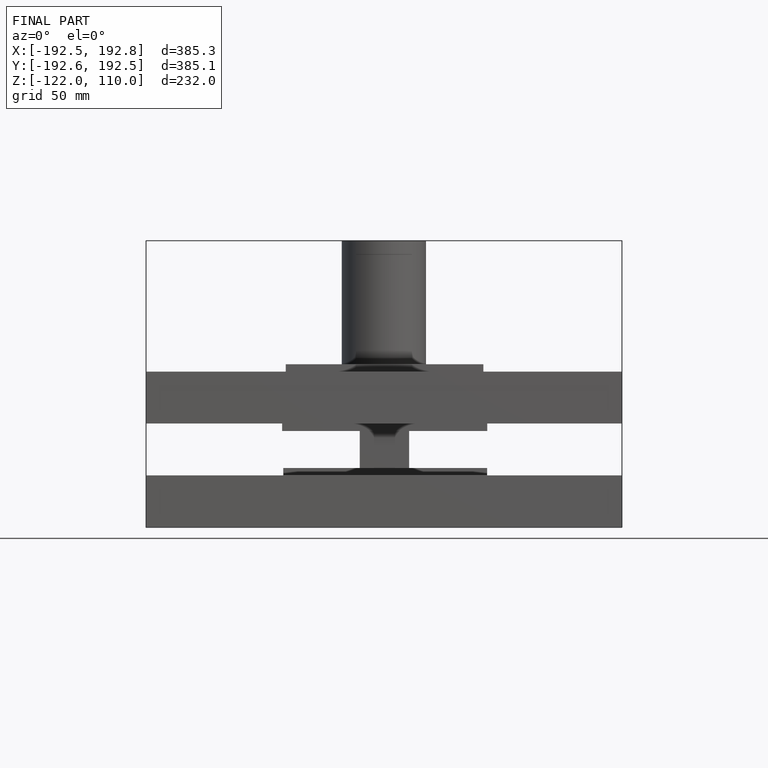
[diagram: finished part — front view with bounding-box wireframe]
